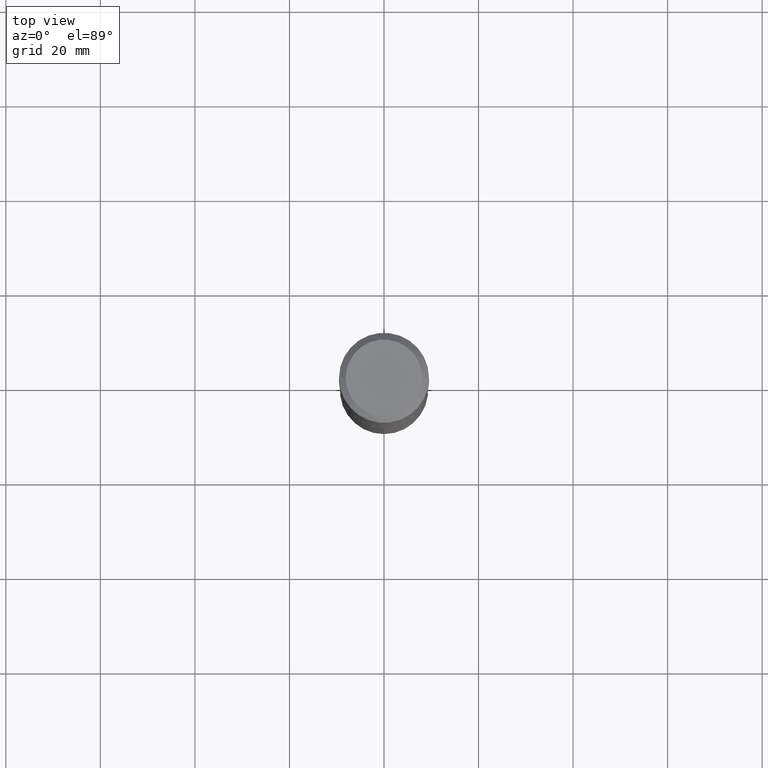
[diagram: clean part render]
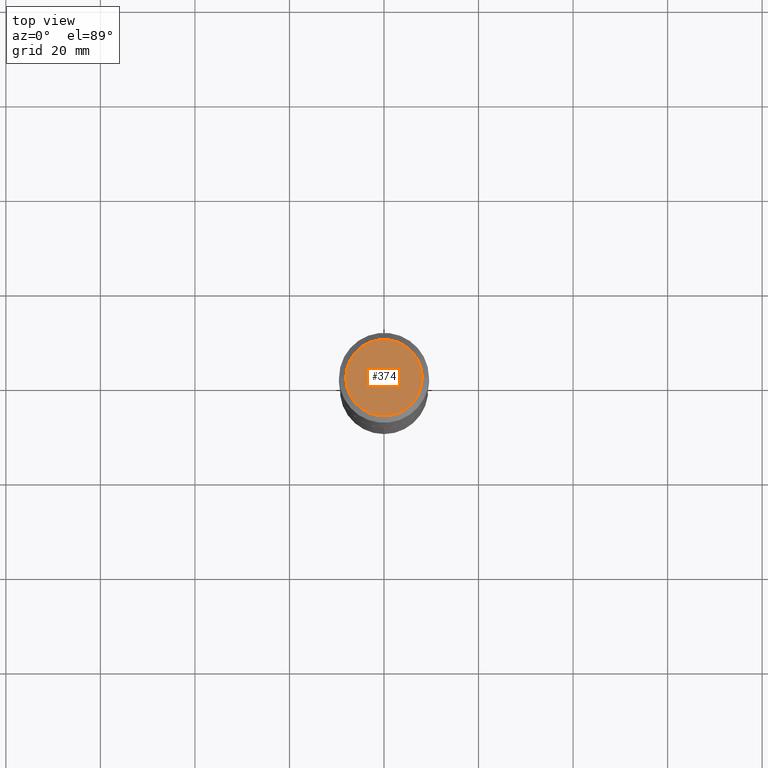
[diagram: same view with one face highlighted and labeled with its STEP entity id]
A machine part, top view. The second image highlights one B-rep face of the part: STEP entity #374.
In plain terms, the highlighted planar face has unit normal (0, -0, -1).
Its self-contained STEP definition (entity closure, byte-faithful):
#14 = AXIS2_PLACEMENT_3D ( 'NONE', #104, #105, #483 ) ;
#31 = AXIS2_PLACEMENT_3D ( 'NONE', #187, #49, #264 ) ;
#49 = DIRECTION ( 'NONE',  ( -2.445468806185136597E-29, 3.491481338843145583E-15, 1.000000000000000000 ) ) ;
#80 = FACE_OUTER_BOUND ( 'NONE', #84, .T. ) ;
#84 = EDGE_LOOP ( 'NONE', ( #189, #467 ) ) ;
#93 = AXIS2_PLACEMENT_3D ( 'NONE', #335, #305, #490 ) ;
#104 = CARTESIAN_POINT ( 'NONE',  ( -1.591006383764331135E-46, 2.271535455632769222E-32, 6.505936120470319537E-18 ) ) ;
#105 = DIRECTION ( 'NONE',  ( -2.445468806185136597E-29, 3.491481338843145583E-15, 1.000000000000000000 ) ) ;
#123 = CIRCLE ( 'NONE', #31, 0.3187499999999999778 ) ;
#155 = VERTEX_POINT ( 'NONE', #440 ) ;
#168 = EDGE_CURVE ( 'NONE', #155, #195, #222, .T. ) ;
#187 = CARTESIAN_POINT ( 'NONE',  ( -1.591006383764331135E-46, 2.271535455632769222E-32, 6.505936120470319537E-18 ) ) ;
#189 = ORIENTED_EDGE ( 'NONE', *, *, #168, .T. ) ;
#195 = VERTEX_POINT ( 'NONE', #407 ) ;
#222 = CIRCLE ( 'NONE', #14, 0.3187499999999999778 ) ;
#264 = DIRECTION ( 'NONE',  ( 1.000000000000000000, -6.982962677686267499E-15, 4.876227444496879000E-29 ) ) ;
#305 = DIRECTION ( 'NONE',  ( 2.438088387897960049E-29, -3.491481338843145188E-15, -1.000000000000000000 ) ) ;
#307 = PLANE ( 'NONE',  #93 ) ;
#335 = CARTESIAN_POINT ( 'NONE',  ( -7.955031918821655674E-47, 1.135767727816384611E-32, 3.252968060235159768E-18 ) ) ;
#374 = ADVANCED_FACE ( 'NONE', ( #80 ), #307, .F. ) ;
#404 = EDGE_CURVE ( 'NONE', #195, #155, #123, .T. ) ;
#407 = CARTESIAN_POINT ( 'NONE',  ( 0.3187499999999999778, -2.477933155631964596E-15, 6.505936120486766208E-18 ) ) ;
#440 = CARTESIAN_POINT ( 'NONE',  ( -0.3187499999999999778, 2.324017266167459654E-15, 6.505936120454410585E-18 ) ) ;
#467 = ORIENTED_EDGE ( 'NONE', *, *, #404, .T. ) ;
#483 = DIRECTION ( 'NONE',  ( 1.000000000000000000, -6.982962677686267499E-15, 4.876227444496879000E-29 ) ) ;
#490 = DIRECTION ( 'NONE',  ( -1.000000000000000000, 6.982962677686265922E-15, -4.876176775795935793E-29 ) ) ;